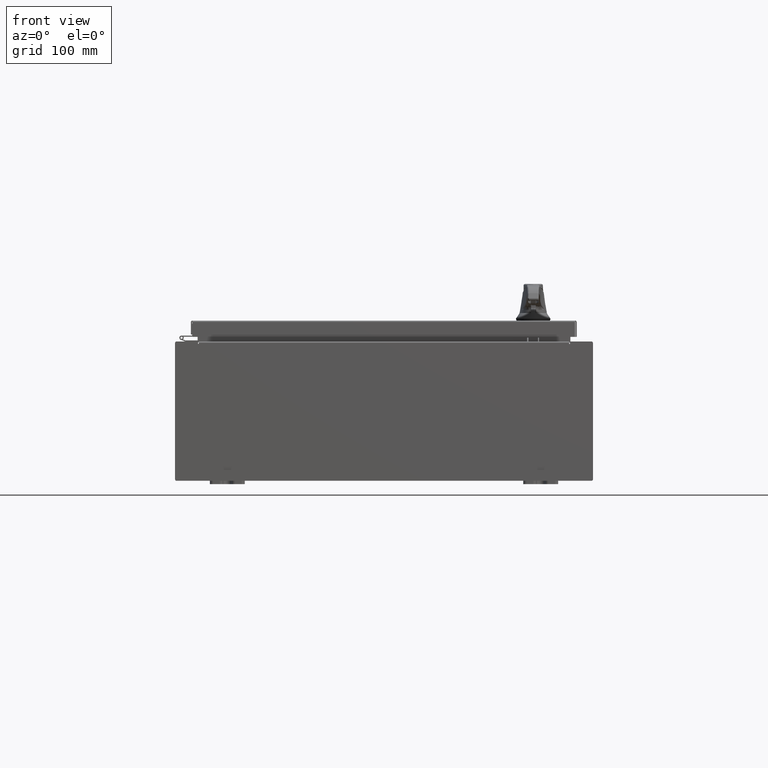
[diagram: clean part render]
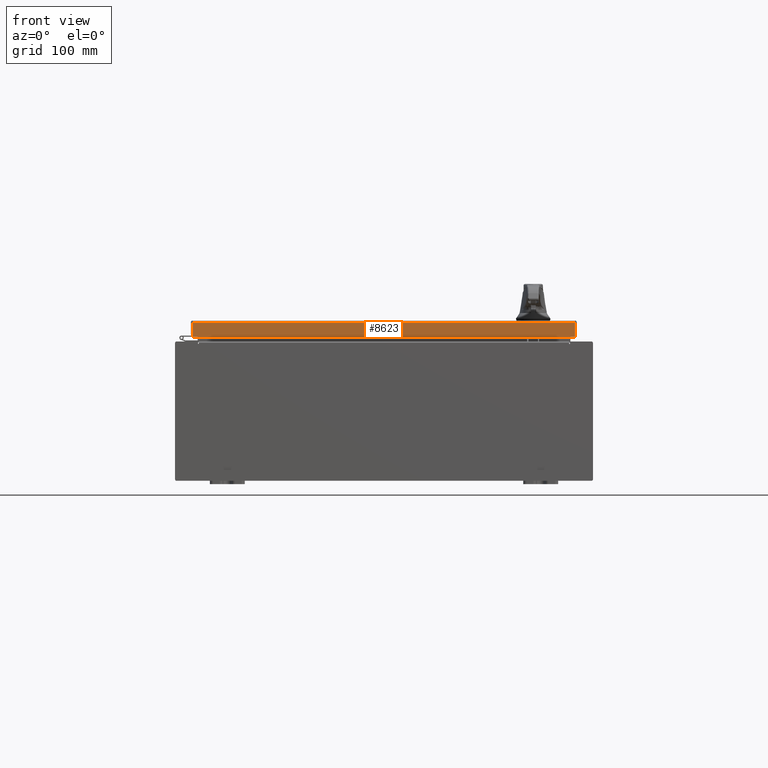
[diagram: same view with one face highlighted and labeled with its STEP entity id]
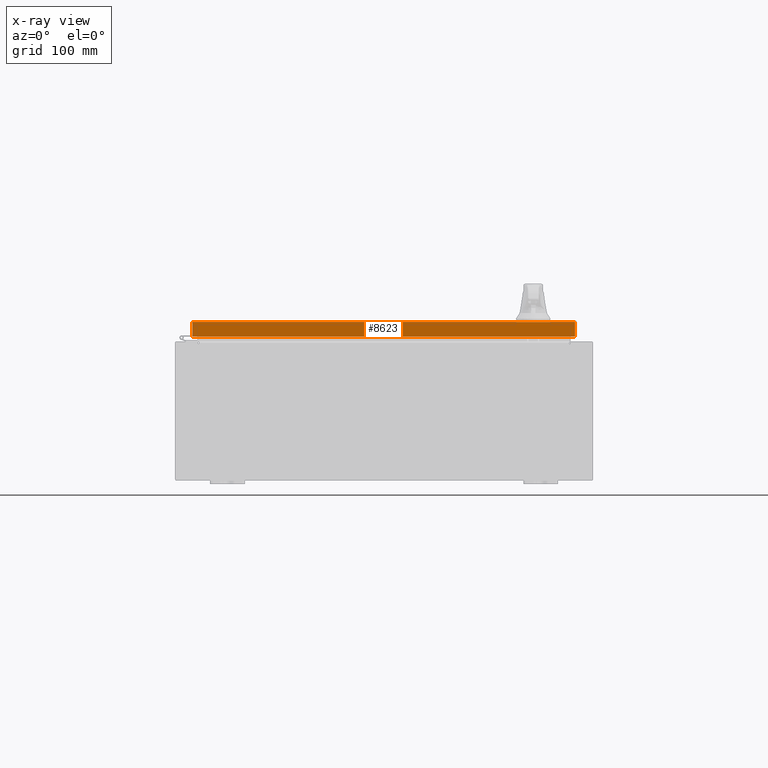
[diagram: x-ray of the same camera — body ghosted, the highlighted face saturated]
A machine part, front view. The second image highlights one B-rep face of the part: STEP entity #8623.
The next image is the same camera in x-ray: the body ghosted, the highlighted face saturated — about 0% of this face is hidden behind the body in this view.
In plain terms, the highlighted planar face has unit normal (0, 1, -0).
Its self-contained STEP definition (entity closure, byte-faithful):
#3242 = DIRECTION ( 'NONE',  ( 9.864047639156001700E-017, 1.000000000000000000, -2.532419924601866100E-015 ) ) ;
#6993 = AXIS2_PLACEMENT_3D ( 'NONE', #111644, #3242, #66553 ) ;
#8623 = ADVANCED_FACE ( 'NONE', ( #91794 ), #48262, .F. ) ;
#9306 = VECTOR ( 'NONE', #35859, 39.37007874015748100 ) ;
#10062 = ORIENTED_EDGE ( 'NONE', *, *, #113432, .F. ) ;
#19585 = VERTEX_POINT ( 'NONE', #82699 ) ;
#26214 = ORIENTED_EDGE ( 'NONE', *, *, #93275, .T. ) ;
#27350 = CARTESIAN_POINT ( 'NONE',  ( 10.98915786437626900, -14.09400000000000300, -0.9376999999999997600 ) ) ;
#29102 = CARTESIAN_POINT ( 'NONE',  ( -10.98915786437626900, -14.09399999999999900, 3.595274007335028100E-014 ) ) ;
#29892 = DIRECTION ( 'NONE',  ( 0.0000000000000000000, -2.532419924601866100E-015, -1.000000000000000000 ) ) ;
#33369 = LINE ( 'NONE', #71958, #9306 ) ;
#35859 = DIRECTION ( 'NONE',  ( 1.000000000000000000, -9.864047639156004100E-017, -7.444398091725593800E-046 ) ) ;
#37400 = ORIENTED_EDGE ( 'NONE', *, *, #68702, .F. ) ;
#39529 = VERTEX_POINT ( 'NONE', #78450 ) ;
#48262 = PLANE ( 'NONE',  #6993 ) ;
#66553 = DIRECTION ( 'NONE',  ( 0.0000000000000000000, 2.532419924601866100E-015, 1.000000000000000000 ) ) ;
#68702 = EDGE_CURVE ( 'NONE', #39529, #78566, #82726, .T. ) ;
#71041 = VERTEX_POINT ( 'NONE', #90167 ) ;
#71283 = DIRECTION ( 'NONE',  ( 0.0000000000000000000, -2.532419924601866100E-015, -1.000000000000000000 ) ) ;
#71958 = CARTESIAN_POINT ( 'NONE',  ( 11.07799999999999900, -14.09400000000000100, -0.08770000000000226200 ) ) ;
#78450 = CARTESIAN_POINT ( 'NONE',  ( 10.98915786437624400, -14.09400000000000100, -0.08770000000000226200 ) ) ;
#78566 = VERTEX_POINT ( 'NONE', #27350 ) ;
#79930 = VECTOR ( 'NONE', #71283, 39.37007874015748100 ) ;
#80367 = CARTESIAN_POINT ( 'NONE',  ( 10.98915786437626900, -14.09400000000000100, -0.07469999999999980800 ) ) ;
#81717 = VECTOR ( 'NONE', #29892, 39.37007874015748100 ) ;
#81787 = EDGE_CURVE ( 'NONE', #71041, #39529, #33369, .T. ) ;
#82699 = CARTESIAN_POINT ( 'NONE',  ( -10.98915786437626700, -14.09400000000000100, -0.9376999999999970900 ) ) ;
#82726 = LINE ( 'NONE', #80367, #79930 ) ;
#90167 = CARTESIAN_POINT ( 'NONE',  ( -10.98915786437626700, -14.09399999999999900, -0.08770000000000226200 ) ) ;
#90518 = CARTESIAN_POINT ( 'NONE',  ( 11.07799999999999900, -14.09400000000000300, -0.9376999999999997600 ) ) ;
#91794 = FACE_OUTER_BOUND ( 'NONE', #113986, .T. ) ;
#93275 = EDGE_CURVE ( 'NONE', #71041, #19585, #105794, .T. ) ;
#99625 = DIRECTION ( 'NONE',  ( -1.000000000000000000, 9.864047639156033700E-017, 1.233005954894504400E-016 ) ) ;
#99728 = ORIENTED_EDGE ( 'NONE', *, *, #81787, .F. ) ;
#105794 = LINE ( 'NONE', #29102, #81717 ) ;
#110737 = VECTOR ( 'NONE', #99625, 39.37007874015748100 ) ;
#111644 = CARTESIAN_POINT ( 'NONE',  ( -1.390238874262646700E-015, -14.09399999999999900, 3.595274007335028100E-014 ) ) ;
#113432 = EDGE_CURVE ( 'NONE', #78566, #19585, #113570, .T. ) ;
#113570 = LINE ( 'NONE', #90518, #110737 ) ;
#113986 = EDGE_LOOP ( 'NONE', ( #99728, #26214, #10062, #37400 ) ) ;